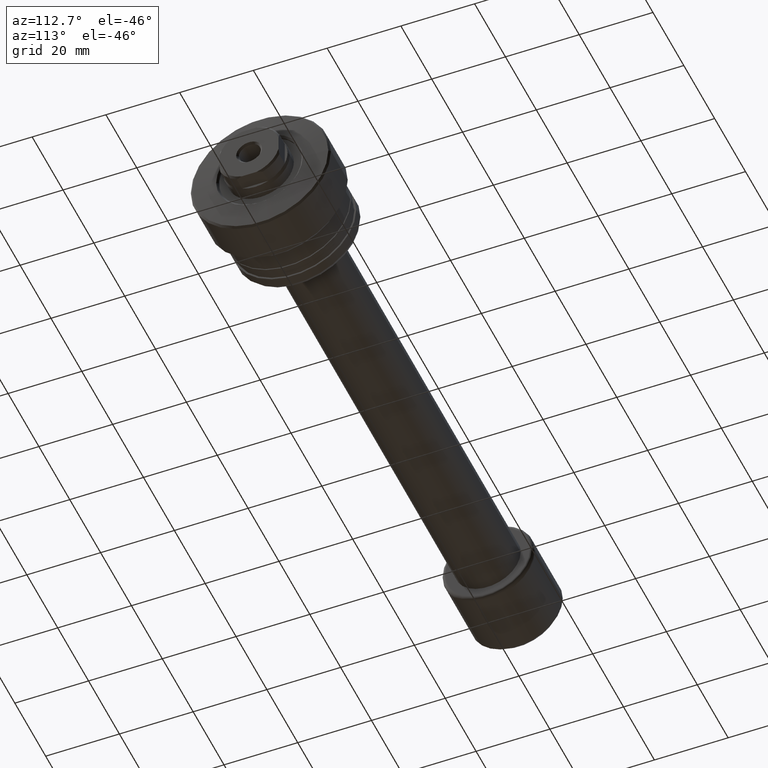
[diagram: clean part render]
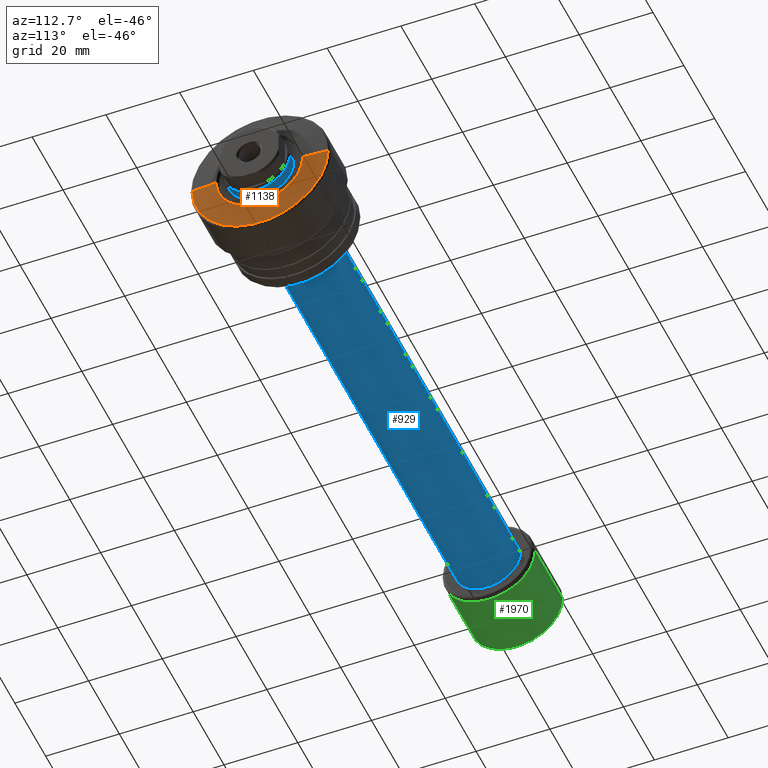
[diagram: same view with three faces highlighted in distinct colors, each labeled with its STEP entity id]
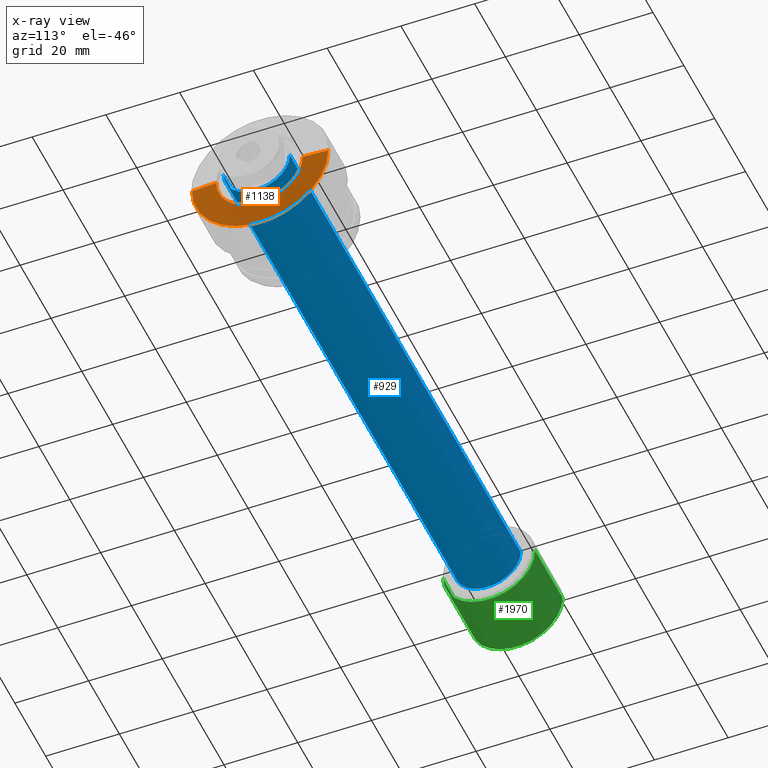
[diagram: x-ray of the same camera — body ghosted, the three highlighted faces saturated]
A machine part, auxiliary view with three faces highlighted in distinct colors.
The next image is the same camera in x-ray (body ghosted, the three faces saturated) — at least one of them is partly hidden behind the body in this view.
Their STEP definitions:

[orange] entity #1138 — the highlighted conical surface has half-angle 86.597 deg.
#9 = EDGE_CURVE ( 'NONE', #545, #1811, #2293, .T. ) ;
#71 = DIRECTION ( 'NONE',  ( -1.000000000000000000, 9.810081908519753690E-16, -0.000000000000000000 ) ) ;
#80 = VERTEX_POINT ( 'NONE', #972 ) ;
#122 = CONICAL_SURFACE ( 'NONE', #646, 18.49999999999993960, 1.511406790602499939 ) ;
#240 = ORIENTED_EDGE ( 'NONE', *, *, #2278, .F. ) ;
#249 = CIRCLE ( 'NONE', #883, 18.49999999999993960 ) ;
#271 = CARTESIAN_POINT ( 'NONE',  ( -1.100000000000670664, -18.49999999999996803, 0.000000000000000000 ) ) ;
#280 = VERTEX_POINT ( 'NONE', #1719 ) ;
#301 = DIRECTION ( 'NONE',  ( -9.845727836625153594E-16, -1.000000000000000000, 0.000000000000000000 ) ) ;
#348 = ORIENTED_EDGE ( 'NONE', *, *, #414, .T. ) ;
#414 = EDGE_CURVE ( 'NONE', #280, #545, #1603, .T. ) ;
#545 = VERTEX_POINT ( 'NONE', #1929 ) ;
#566 = DIRECTION ( 'NONE',  ( -9.845727836625153594E-16, -1.000000000000000000, 0.000000000000000000 ) ) ;
#606 = DIRECTION ( 'NONE',  ( -9.781621530169970631E-16, -1.000000000000000000, 0.000000000000000000 ) ) ;
#628 = CARTESIAN_POINT ( 'NONE',  ( -1.100000000000634248, 18.49999999999991118, 2.265596578422596297E-15 ) ) ;
#646 = AXIS2_PLACEMENT_3D ( 'NONE', #1303, #1267, #566 ) ;
#697 = EDGE_LOOP ( 'NONE', ( #1242, #348, #2233, #240 ) ) ;
#784 = CARTESIAN_POINT ( 'NONE',  ( -0.6985962339401685650, -2.901962172594635549E-14, 0.000000000000000000 ) ) ;
#868 = DIRECTION ( 'NONE',  ( -1.000000000000000000, 9.810081908519753690E-16, -0.000000000000000000 ) ) ;
#883 = AXIS2_PLACEMENT_3D ( 'NONE', #2367, #868, #301 ) ;
#963 = DIRECTION ( 'NONE',  ( -0.05935463004165669743, 0.9982369597909196424, 1.222487697598534734E-16 ) ) ;
#972 = CARTESIAN_POINT ( 'NONE',  ( -1.100000000000634248, 18.49999999999991118, 2.296212748401282056E-15 ) ) ;
#1033 = AXIS2_PLACEMENT_3D ( 'NONE', #784, #71, #606 ) ;
#1088 = FACE_OUTER_BOUND ( 'NONE', #697, .T. ) ;
#1108 = DIRECTION ( 'NONE',  ( -0.05935463004165866113, -0.9982369597909195313, 0.000000000000000000 ) ) ;
#1138 = ADVANCED_FACE ( 'NONE', ( #1088 ), #122, .T. ) ;
#1242 = ORIENTED_EDGE ( 'NONE', *, *, #2435, .F. ) ;
#1267 = DIRECTION ( 'NONE',  ( -1.000000000000000000, 9.810081908519753690E-16, -0.000000000000000000 ) ) ;
#1303 = CARTESIAN_POINT ( 'NONE',  ( -1.100000000000652456, -2.862584134360218609E-14, 0.000000000000000000 ) ) ;
#1446 = VECTOR ( 'NONE', #963, 1000.000000000000000 ) ;
#1603 = CIRCLE ( 'NONE', #1033, 11.74911847989547731 ) ;
#1719 = CARTESIAN_POINT ( 'NONE',  ( -0.6985962339401570187, 11.74911847989544711, 1.852224306171648525E-15 ) ) ;
#1811 = VERTEX_POINT ( 'NONE', #271 ) ;
#1879 = VECTOR ( 'NONE', #1108, 1000.000000000000114 ) ;
#1929 = CARTESIAN_POINT ( 'NONE',  ( -0.6985962339401801113, -11.74911847989550573, 0.000000000000000000 ) ) ;
#2127 = LINE ( 'NONE', #628, #1446 ) ;
#2233 = ORIENTED_EDGE ( 'NONE', *, *, #9, .T. ) ;
#2278 = EDGE_CURVE ( 'NONE', #80, #1811, #249, .T. ) ;
#2293 = LINE ( 'NONE', #2440, #1879 ) ;
#2367 = CARTESIAN_POINT ( 'NONE',  ( -1.100000000000652456, -2.862584134360218609E-14, 0.000000000000000000 ) ) ;
#2435 = EDGE_CURVE ( 'NONE', #280, #80, #2127, .T. ) ;
#2440 = CARTESIAN_POINT ( 'NONE',  ( -1.100000000000670664, -18.49999999999996803, 0.000000000000000000 ) ) ;

[blue] entity #929 — the highlighted cylindrical surface (edge-blend (fillet) strip) has radius 9 mm, axis along (-1, -0, -0).
#38 = DIRECTION ( 'NONE',  ( -1.000000000000000000, -1.069542322069065801E-17, -0.000000000000000000 ) ) ;
#109 = ORIENTED_EDGE ( 'NONE', *, *, #788, .F. ) ;
#200 = DIRECTION ( 'NONE',  ( -1.000000000000000000, -1.069542322069065801E-17, -0.000000000000000000 ) ) ;
#231 = LINE ( 'NONE', #1713, #1005 ) ;
#237 = DIRECTION ( 'NONE',  ( -1.000000000000000000, -1.069542322069065801E-17, -0.000000000000000000 ) ) ;
#238 = EDGE_CURVE ( 'NONE', #1004, #419, #912, .T. ) ;
#419 = VERTEX_POINT ( 'NONE', #632 ) ;
#523 = CIRCLE ( 'NONE', #2141, 9.000000000000197176 ) ;
#573 = DIRECTION ( 'NONE',  ( 0.000000000000000000, -1.000000000000000000, 0.000000000000000000 ) ) ;
#632 = CARTESIAN_POINT ( 'NONE',  ( 20.40000000000000924, -9.000000000000000000, 0.000000000000000000 ) ) ;
#633 = LINE ( 'NONE', #1525, #2138 ) ;
#709 = CYLINDRICAL_SURFACE ( 'NONE', #922, 9.000000000000097700 ) ;
#788 = EDGE_CURVE ( 'NONE', #1564, #1004, #633, .T. ) ;
#894 = FACE_OUTER_BOUND ( 'NONE', #1599, .T. ) ;
#912 = CIRCLE ( 'NONE', #1483, 9.000000000000000000 ) ;
#922 = AXIS2_PLACEMENT_3D ( 'NONE', #1814, #1056, #1789 ) ;
#924 = ORIENTED_EDGE ( 'NONE', *, *, #2356, .T. ) ;
#929 = ADVANCED_FACE ( 'NONE', ( #894 ), #709, .T. ) ;
#941 = DIRECTION ( 'NONE',  ( 0.000000000000000000, -1.000000000000000000, 0.000000000000000000 ) ) ;
#949 = CARTESIAN_POINT ( 'NONE',  ( 170.0667575123237611, -9.000000000000195399, 0.000000000000000000 ) ) ;
#975 = CARTESIAN_POINT ( 'NONE',  ( 170.0667575123237611, 1.818935947364874704E-15, 0.000000000000000000 ) ) ;
#1004 = VERTEX_POINT ( 'NONE', #2201 ) ;
#1005 = VECTOR ( 'NONE', #200, 1000.000000000000000 ) ;
#1056 = DIRECTION ( 'NONE',  ( -1.000000000000000000, -1.069542322069065801E-17, -0.000000000000000000 ) ) ;
#1315 = DIRECTION ( 'NONE',  ( -1.000000000000000000, -1.069542322069065801E-17, -0.000000000000000000 ) ) ;
#1483 = AXIS2_PLACEMENT_3D ( 'NONE', #2068, #1315, #941 ) ;
#1525 = CARTESIAN_POINT ( 'NONE',  ( -9.625880898621698056E-17, 9.000000000000097700, 1.102182119232629941E-15 ) ) ;
#1564 = VERTEX_POINT ( 'NONE', #2359 ) ;
#1599 = EDGE_LOOP ( 'NONE', ( #109, #2364, #924, #1750 ) ) ;
#1713 = CARTESIAN_POINT ( 'NONE',  ( 9.625880898621698056E-17, -9.000000000000097700, 0.000000000000000000 ) ) ;
#1750 = ORIENTED_EDGE ( 'NONE', *, *, #238, .F. ) ;
#1789 = DIRECTION ( 'NONE',  ( 1.069542322069065955E-17, -1.000000000000000000, 0.000000000000000000 ) ) ;
#1814 = CARTESIAN_POINT ( 'NONE',  ( 0.000000000000000000, 0.000000000000000000, 0.000000000000000000 ) ) ;
#2068 = CARTESIAN_POINT ( 'NONE',  ( 20.40000000000000924, 2.181866337020895103E-16, 0.000000000000000000 ) ) ;
#2138 = VECTOR ( 'NONE', #237, 1000.000000000000000 ) ;
#2141 = AXIS2_PLACEMENT_3D ( 'NONE', #975, #38, #573 ) ;
#2201 = CARTESIAN_POINT ( 'NONE',  ( 20.40000000000000924, 9.000000000000000000, 1.102182119232623630E-15 ) ) ;
#2356 = EDGE_CURVE ( 'NONE', #2437, #419, #231, .T. ) ;
#2359 = CARTESIAN_POINT ( 'NONE',  ( 170.0667575123237611, 9.000000000000198952, 1.102182119232642169E-15 ) ) ;
#2364 = ORIENTED_EDGE ( 'NONE', *, *, #2421, .T. ) ;
#2421 = EDGE_CURVE ( 'NONE', #1564, #2437, #523, .T. ) ;
#2437 = VERTEX_POINT ( 'NONE', #949 ) ;

[green] entity #1970 — the highlighted cylindrical surface (partial cylindrical patch) has radius 12.5 mm, axis along (-1, -0, -0).
#18 = VECTOR ( 'NONE', #1522, 1000.000000000000000 ) ;
#29 = VERTEX_POINT ( 'NONE', #595 ) ;
#36 = CARTESIAN_POINT ( 'NONE',  ( 1.500000000000001776, -12.50000000000000000, 1.530808498934191521E-15 ) ) ;
#179 = DIRECTION ( 'NONE',  ( -1.000000000000000000, -1.069542322069065801E-17, -0.000000000000000000 ) ) ;
#182 = EDGE_CURVE ( 'NONE', #413, #29, #565, .T. ) ;
#381 = CARTESIAN_POINT ( 'NONE',  ( 1.500000000000001554, 1.604313483103600319E-17, 0.000000000000000000 ) ) ;
#390 = CYLINDRICAL_SURFACE ( 'NONE', #2094, 12.50000000000000000 ) ;
#413 = VERTEX_POINT ( 'NONE', #2299 ) ;
#444 = DIRECTION ( 'NONE',  ( 0.000000000000000000, -1.000000000000000000, 0.000000000000000000 ) ) ;
#449 = AXIS2_PLACEMENT_3D ( 'NONE', #381, #1504, #2281 ) ;
#546 = ORIENTED_EDGE ( 'NONE', *, *, #1809, .T. ) ;
#565 = LINE ( 'NONE', #1681, #2046 ) ;
#595 = CARTESIAN_POINT ( 'NONE',  ( 1.500000000000001332, 12.50000000000000000, 0.000000000000000000 ) ) ;
#599 = AXIS2_PLACEMENT_3D ( 'NONE', #1362, #2130, #444 ) ;
#757 = CIRCLE ( 'NONE', #599, 12.50000000000000000 ) ;
#832 = ORIENTED_EDGE ( 'NONE', *, *, #1257, .T. ) ;
#1115 = EDGE_CURVE ( 'NONE', #29, #2136, #2382, .T. ) ;
#1204 = EDGE_LOOP ( 'NONE', ( #1244, #546, #832, #1905 ) ) ;
#1244 = ORIENTED_EDGE ( 'NONE', *, *, #182, .F. ) ;
#1257 = EDGE_CURVE ( 'NONE', #2025, #2136, #2032, .T. ) ;
#1362 = CARTESIAN_POINT ( 'NONE',  ( 19.40000000000000924, 2.074912104813988415E-16, 0.000000000000000000 ) ) ;
#1504 = DIRECTION ( 'NONE',  ( -1.000000000000000000, -1.069542322069065801E-17, -0.000000000000000000 ) ) ;
#1512 = DIRECTION ( 'NONE',  ( 1.069542322069065955E-17, -1.000000000000000000, 0.000000000000000000 ) ) ;
#1522 = DIRECTION ( 'NONE',  ( -1.000000000000000000, -1.069542322069065801E-17, -0.000000000000000000 ) ) ;
#1664 = DIRECTION ( 'NONE',  ( -1.000000000000000000, -1.069542322069065801E-17, -0.000000000000000000 ) ) ;
#1681 = CARTESIAN_POINT ( 'NONE',  ( -1.336927902586332490E-16, 12.50000000000000000, 1.530808498934191521E-15 ) ) ;
#1695 = CARTESIAN_POINT ( 'NONE',  ( 0.000000000000000000, 0.000000000000000000, 0.000000000000000000 ) ) ;
#1809 = EDGE_CURVE ( 'NONE', #413, #2025, #757, .T. ) ;
#1905 = ORIENTED_EDGE ( 'NONE', *, *, #1115, .F. ) ;
#1970 = ADVANCED_FACE ( 'NONE', ( #2065 ), #390, .T. ) ;
#2025 = VERTEX_POINT ( 'NONE', #2294 ) ;
#2032 = LINE ( 'NONE', #2045, #18 ) ;
#2045 = CARTESIAN_POINT ( 'NONE',  ( 1.336927902586332490E-16, -12.50000000000000000, 0.000000000000000000 ) ) ;
#2046 = VECTOR ( 'NONE', #179, 1000.000000000000000 ) ;
#2065 = FACE_OUTER_BOUND ( 'NONE', #1204, .T. ) ;
#2094 = AXIS2_PLACEMENT_3D ( 'NONE', #1695, #1664, #1512 ) ;
#2130 = DIRECTION ( 'NONE',  ( -1.000000000000000000, -1.069542322069065801E-17, -0.000000000000000000 ) ) ;
#2136 = VERTEX_POINT ( 'NONE', #36 ) ;
#2281 = DIRECTION ( 'NONE',  ( 1.734723475976807094E-17, -1.000000000000000000, 0.000000000000000000 ) ) ;
#2294 = CARTESIAN_POINT ( 'NONE',  ( 19.40000000000000924, -12.50000000000000000, 0.000000000000000000 ) ) ;
#2299 = CARTESIAN_POINT ( 'NONE',  ( 19.40000000000000924, 12.50000000000000000, 1.530808498934191521E-15 ) ) ;
#2382 = CIRCLE ( 'NONE', #449, 12.50000000000000000 ) ;